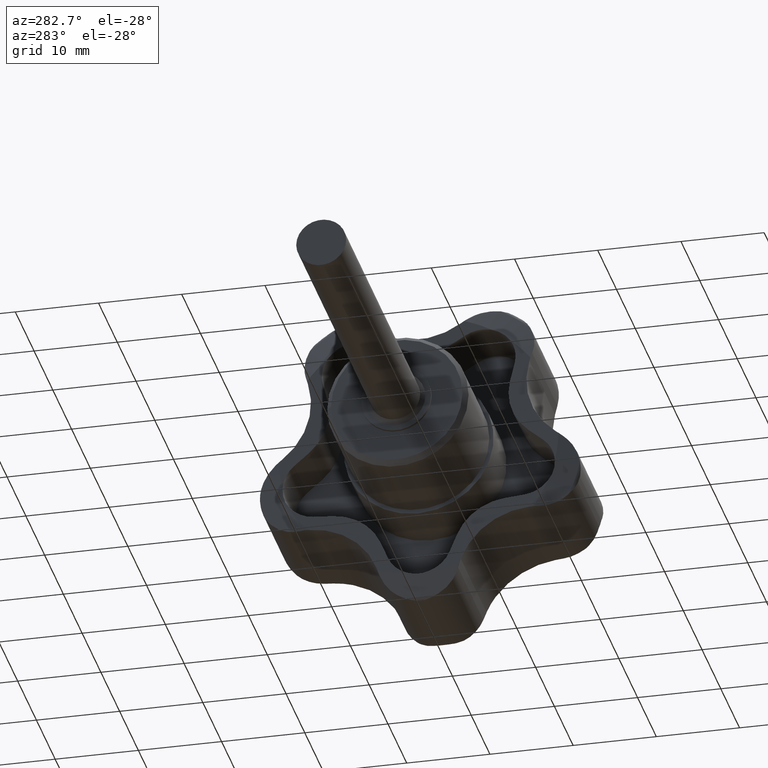
[diagram: clean part render]
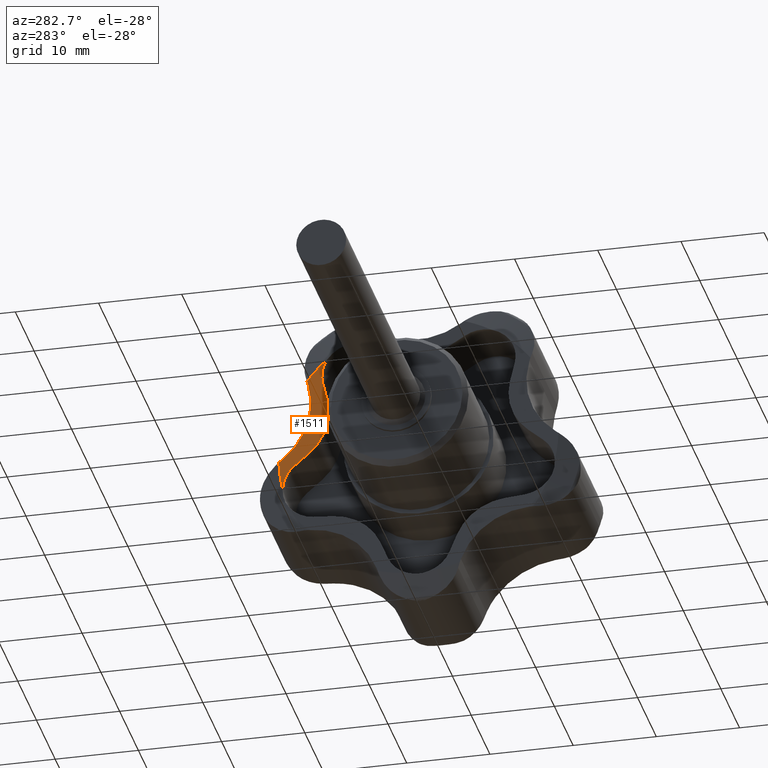
[diagram: same view with one face highlighted and labeled with its STEP entity id]
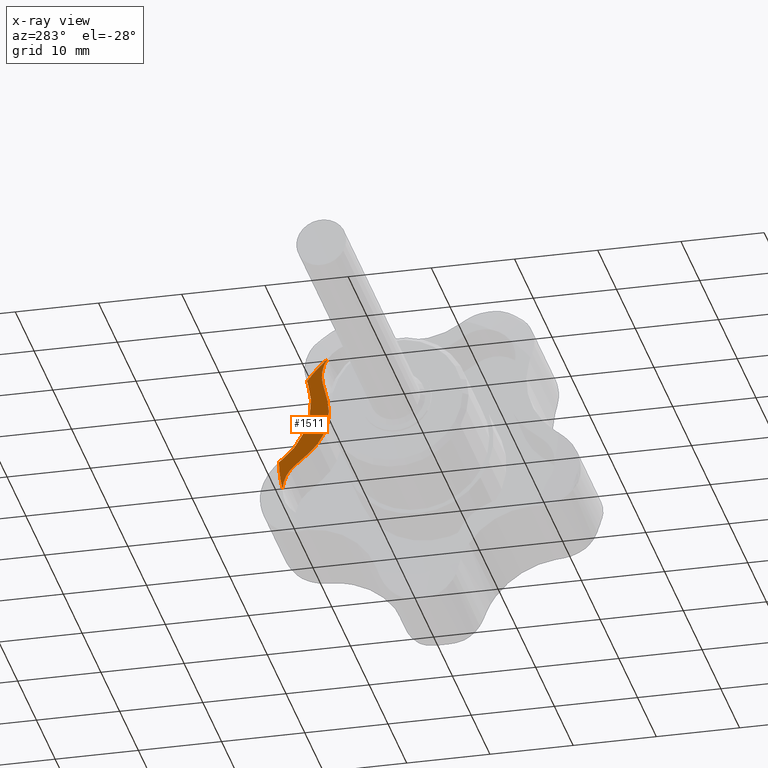
[diagram: x-ray of the same camera — body ghosted, the highlighted face saturated]
A machine part, auxiliary view. The second image highlights one B-rep face of the part: STEP entity #1511.
The next image is the same camera in x-ray: the body ghosted, the highlighted face saturated — about 1% of this face is hidden behind the body in this view.
In plain terms, the highlighted planar face has unit normal (-1, 0, 0).
Its self-contained STEP definition (entity closure, byte-faithful):
#40=PLANE('',#1681);
#56=LINE('',#2628,#136);
#61=LINE('',#2683,#141);
#104=LINE('',#3050,#184);
#108=LINE('',#3062,#188);
#136=VECTOR('',#1775,0.423390685656664);
#141=VECTOR('',#1788,0.423390685656698);
#184=VECTOR('',#2023,2.36353584231442);
#188=VECTOR('',#2035,2.36353584231439);
#379=FACE_OUTER_BOUND('',#474,.T.);
#474=EDGE_LOOP('',(#1378,#1379,#1380,#1381,#1382,#1383,#1384,#1385,#1386,
#1387));
#505=CIRCLE('',#1559,8.99999999999997);
#550=CIRCLE('',#1637,16.8);
#551=CIRCLE('',#1640,16.8);
#556=CIRCLE('',#1655,3.99999999999999);
#557=CIRCLE('',#1658,6.75000000000002);
#559=CIRCLE('',#1662,4.);
#634=VERTEX_POINT('',#2625);
#635=VERTEX_POINT('',#2627);
#640=VERTEX_POINT('',#2678);
#641=VERTEX_POINT('',#2682);
#695=VERTEX_POINT('',#2991);
#696=VERTEX_POINT('',#3007);
#704=VERTEX_POINT('',#3045);
#705=VERTEX_POINT('',#3049);
#707=VERTEX_POINT('',#3055);
#709=VERTEX_POINT('',#3061);
#797=EDGE_CURVE('',#635,#634,#56,.T.);
#804=EDGE_CURVE('',#640,#635,#505,.T.);
#806=EDGE_CURVE('',#641,#640,#61,.T.);
#895=EDGE_CURVE('',#641,#695,#550,.T.);
#899=EDGE_CURVE('',#696,#634,#551,.T.);
#914=EDGE_CURVE('',#696,#704,#556,.T.);
#915=EDGE_CURVE('',#704,#705,#104,.T.);
#918=EDGE_CURVE('',#705,#707,#557,.T.);
#921=EDGE_CURVE('',#707,#709,#108,.T.);
#924=EDGE_CURVE('',#709,#695,#559,.T.);
#1378=ORIENTED_EDGE('',*,*,#797,.T.);
#1379=ORIENTED_EDGE('',*,*,#899,.F.);
#1380=ORIENTED_EDGE('',*,*,#914,.T.);
#1381=ORIENTED_EDGE('',*,*,#915,.T.);
#1382=ORIENTED_EDGE('',*,*,#918,.T.);
#1383=ORIENTED_EDGE('',*,*,#921,.T.);
#1384=ORIENTED_EDGE('',*,*,#924,.T.);
#1385=ORIENTED_EDGE('',*,*,#895,.F.);
#1386=ORIENTED_EDGE('',*,*,#806,.T.);
#1387=ORIENTED_EDGE('',*,*,#804,.T.);
#1511=ADVANCED_FACE('',(#379),#40,.T.);
#1559=AXIS2_PLACEMENT_3D('',#2679,#1783,#1784);
#1637=AXIS2_PLACEMENT_3D('',#2992,#1973,#1974);
#1640=AXIS2_PLACEMENT_3D('',#3014,#1979,#1980);
#1655=AXIS2_PLACEMENT_3D('',#3047,#2019,#2020);
#1658=AXIS2_PLACEMENT_3D('',#3056,#2028,#2029);
#1662=AXIS2_PLACEMENT_3D('',#3067,#2040,#2041);
#1681=AXIS2_PLACEMENT_3D('',#3111,#2093,#2094);
#1775=DIRECTION('',(0.,0.793587093548321,-0.60845667467251));
#1783=DIRECTION('center_axis',(1.,0.,0.));
#1784=DIRECTION('ref_axis',(0.,-0.608456674672508,-0.793587093548323));
#1788=DIRECTION('',(0.,-0.28438358516579,-0.95871058014828));
#1973=DIRECTION('center_axis',(1.,0.,0.));
#1974=DIRECTION('ref_axis',(0.,-1.,0.));
#1979=DIRECTION('center_axis',(1.,0.,0.));
#1980=DIRECTION('ref_axis',(0.,-1.,0.));
#2019=DIRECTION('center_axis',(1.,0.,0.));
#2020=DIRECTION('ref_axis',(0.,0.0773141509102542,-0.997006781355587));
#2023=DIRECTION('',(0.,-0.761151311925172,0.648574344508469));
#2028=DIRECTION('center_axis',(-1.,0.,0.));
#2029=DIRECTION('ref_axis',(0.,-0.64857434450847,-0.761151311925171));
#2035=DIRECTION('',(0.,0.234561911920917,0.972101182735627));
#2040=DIRECTION('center_axis',(1.,0.,0.));
#2041=DIRECTION('ref_axis',(0.,0.972101182735627,-0.234561911920916));
#2093=DIRECTION('center_axis',(-1.,0.,0.));
#2094=DIRECTION('ref_axis',(0.,0.,1.));
#2625=CARTESIAN_POINT('',(12.,16.7978005632937,-0.271838620896993));
#2627=CARTESIAN_POINT('',(12.,16.461803179628,-0.01422373221502));
#2628=CARTESIAN_POINT('',(12.,16.461803179628,-0.0142237322150516));
#2678=CARTESIAN_POINT('',(12.,13.309518030346,9.687512376212));
#2679=CARTESIAN_POINT('Origin',(12.,21.9379132516805,7.12806010971986));
#2682=CARTESIAN_POINT('',(12.,13.4299233914589,10.0934215060873));
#2683=CARTESIAN_POINT('',(12.,13.4299233914588,10.0934215060873));
#2991=CARTESIAN_POINT('',(12.,10.9871892291753,12.7091177051082));
#2992=CARTESIAN_POINT('Origin',(12.,7.34788079488412E-16,0.));
#3007=CARTESIAN_POINT('',(12.,16.3590547635279,-3.82378441388814));
#3014=CARTESIAN_POINT('Origin',(12.,7.34788079488412E-16,0.));
#3045=CARTESIAN_POINT('',(12.,14.9580320898709,-0.972615679173638));
#3047=CARTESIAN_POINT('Origin',(12.,12.363734711837,-4.01722092687432));
#3049=CARTESIAN_POINT('',(12.,13.1590236827111,0.560313030477693));
#3050=CARTESIAN_POINT('',(12.,14.9580320898709,-0.972615679173651));
#3055=CARTESIAN_POINT('',(12.,10.9752175246778,7.28137729143879));
#3056=CARTESIAN_POINT('Origin',(12.,17.5369005081433,5.69808438597261));
#3061=CARTESIAN_POINT('',(12.,11.5296130107447,9.57897327919065));
#3062=CARTESIAN_POINT('',(12.,10.9752175246778,7.2813772914388));
#3067=CARTESIAN_POINT('Origin',(12.,7.64120827980215,10.5172209268743));
#3111=CARTESIAN_POINT('Origin',(12.,-12.65,-3.09825407517061E-15));